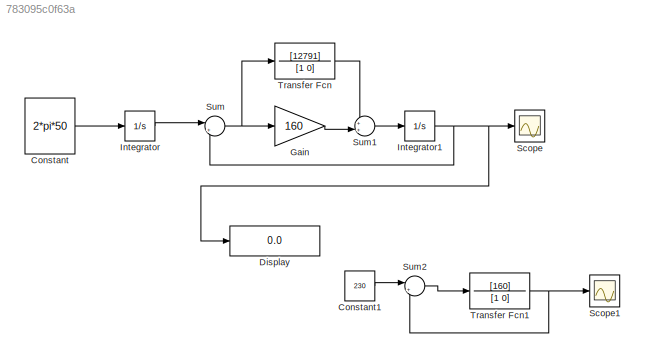
MODEL slx_783095c0f63a
KIND model
CONFIG AbsTol = auto
CONFIG EnableMultiTasking = off
CONFIG FixedStep = auto
CONFIG MaxStep = auto
CONFIG MinStep = auto
CONFIG RelTol = 1e-3
CONFIG SampleTimeConstraint = Unconstrained
CONFIG SolverName = VariableStepAuto
CONFIG StartTime = 0.0
CONFIG StopTime = 1
BLOCK [Constant] Constant
  Value = 2*pi*50
BLOCK [Constant] Constant1
  Value = 230
BLOCK [Display] Display
  Decimation = 1
BLOCK [Gain] Gain
  Gain = 160
BLOCK [Integrator] Integrator
BLOCK [Integrator] Integrator1
BLOCK [Scope] Scope
  Floating = off
  NumInputPorts = 1
  ScopeSpecificationString = Simulink.scopes.TimeScopeBlockCfg('CurrentConfiguration', extmgr.ConfigurationSet(extmgr.Configuration('Core','General UI',true),extmgr.Configuration('Core','Source UI',true),extmgr.Configuration('Sources','WiredSimulink',true),extmgr.Configuration('Visuals','Time Domain',true,'SerializedDisplays',{struct('MinYLimReal','-39.26991','MaxYLimReal','353.42917','YLabelReal','','MinYLimMag','0.00000','M...<+1366ch>
BLOCK [Scope] Scope1
  Floating = off
  NumInputPorts = 1
  ScopeSpecificationString = Simulink.scopes.TimeScopeBlockCfg('CurrentConfiguration', extmgr.ConfigurationSet(extmgr.Configuration('Core','General UI',true),extmgr.Configuration('Core','Source UI',true),extmgr.Configuration('Sources','WiredSimulink',true,'DataLoggingVariableName','ScopeData1'),extmgr.Configuration('Visuals','Time Domain',true,'SerializedDisplays',{struct('MinYLimReal','-28.75','MaxYLimReal','258.75','YLabelR...<+1364ch>
BLOCK [Sum] Sum
  Inputs = |+-
BLOCK [Sum] Sum1
  Inputs = ++|
BLOCK [Sum] Sum2
  Inputs = |+-
BLOCK [TransferFcn] Transfer Fcn
  Denominator = [1 0]
  Numerator = [12791]
BLOCK [TransferFcn] Transfer Fcn1
  Denominator = [1 0]
  Numerator = [160]
LINE Constant1:1 -> Sum2:1
LINE Constant:1 -> Integrator:1
LINE Gain:1 -> Sum1:2
NET Integrator1:1 -> Display:1, Scope:1, Sum:2
LINE Integrator:1 -> Sum:1
LINE Sum1:1 -> Integrator1:1
LINE Sum2:1 -> Transfer Fcn1:1
NET Sum:1 -> Gain:1, Transfer Fcn:1
NET Transfer Fcn1:1 -> Scope1:1, Sum2:2
LINE Transfer Fcn:1 -> Sum1:1
note: NET lines group one-source signal fan-out (src -> all destinations, sorted); 1:1 wires keep LINE
